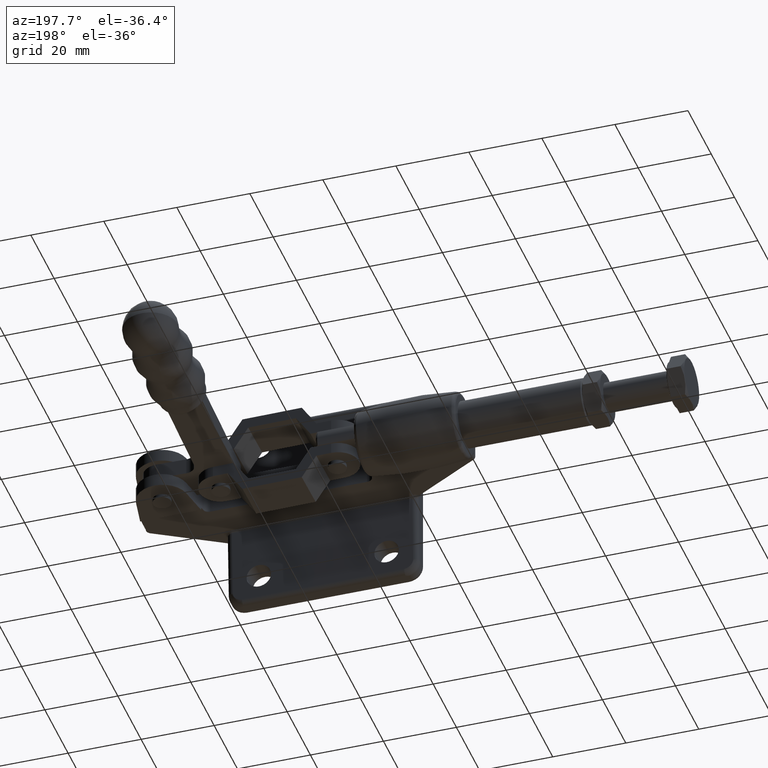
[diagram: clean part render]
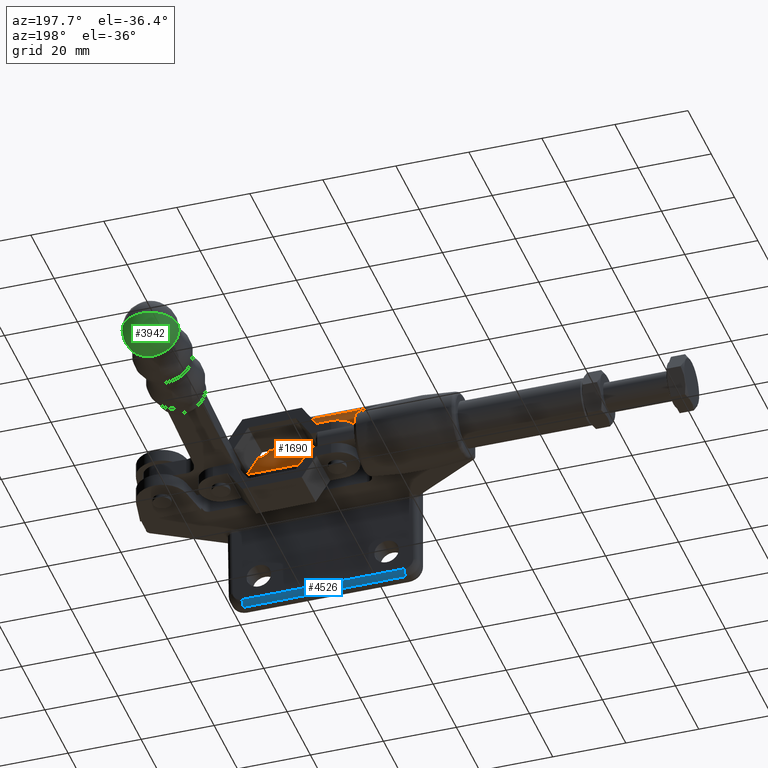
[diagram: same view with three faces highlighted in distinct colors, each labeled with its STEP entity id]
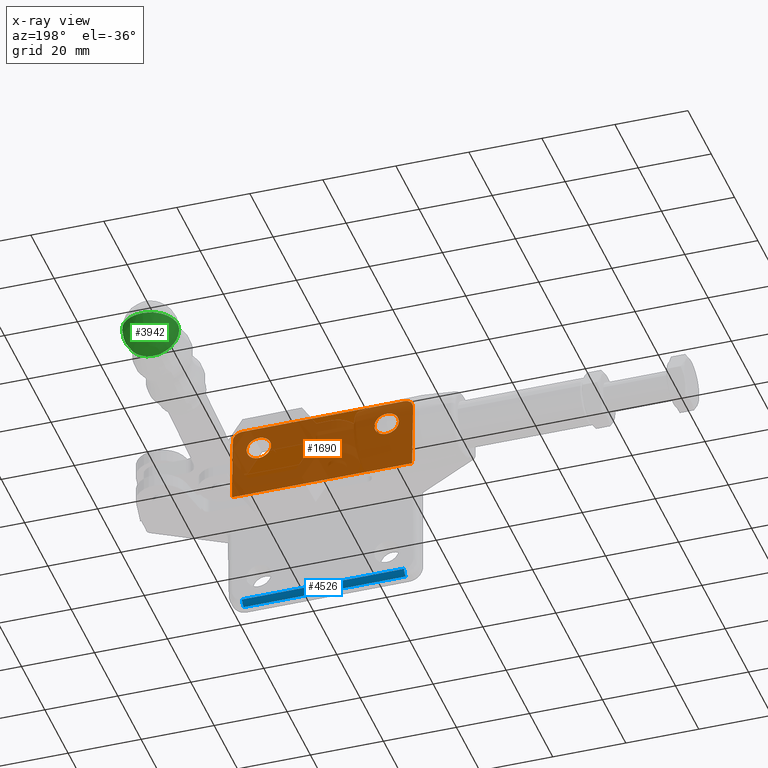
[diagram: x-ray of the same camera — body ghosted, the three highlighted faces saturated]
A machine part, auxiliary view with three faces highlighted in distinct colors.
The next image is the same camera in x-ray (body ghosted, the three faces saturated) — at least one of them is partly hidden behind the body in this view.
Their STEP definitions:

[orange] entity #1690 — the highlighted planar face has unit normal (0, 0.9991, 0.0422).
#135 = CARTESIAN_POINT ( 'NONE',  ( -68.90000000000020500, 5.915127798489936400, 5.953627758746062400 ) ) ;
#176 = LINE ( 'NONE', #6316, #3923 ) ;
#276 = ORIENTED_EDGE ( 'NONE', *, *, #8421, .F. ) ;
#426 = DIRECTION ( 'NONE',  ( 0.0000000000000000000, 0.9991110161104643800, 0.04215658295824644500 ) ) ;
#456 = ORIENTED_EDGE ( 'NONE', *, *, #6599, .F. ) ;
#479 = CARTESIAN_POINT ( 'NONE',  ( -68.81197862350347800, 5.060405032683214600, 26.21055730836550500 ) ) ;
#541 = CARTESIAN_POINT ( 'NONE',  ( -61.70000000000000300, 5.151567788310461400, 24.05000000000000400 ) ) ;
#577 = VERTEX_POINT ( 'NONE', #7050 ) ;
#749 = CARTESIAN_POINT ( 'NONE',  ( -19.99999999999998600, 5.151567788310462200, 24.05000000000000100 ) ) ;
#931 = CARTESIAN_POINT ( 'NONE',  ( -20.60297374564015600, 5.020207535012769300, 27.16323800315510800 ) ) ;
#1070 = B_SPLINE_CURVE_WITH_KNOTS ( 'NONE', 3,
 ( #5501, #3243, #3312, #8503, #4042, #9233, #4785 ),
 .UNSPECIFIED., .F., .F.,
 ( 4, 3, 4 ),
 ( 0.0000000000000000000, 0.0001400590099118806400, 0.0001478049766338954700 ),
 .UNSPECIFIED. ) ;
#1261 = ORIENTED_EDGE ( 'NONE', *, *, #9097, .T. ) ;
#1302 = CARTESIAN_POINT ( 'NONE',  ( -55.00000000000001400, 5.434268210251383700, 17.35000000000000100 ) ) ;
#1357 = CARTESIAN_POINT ( 'NONE',  ( -61.70000000000000300, 5.151567788310461400, 24.05000000000000400 ) ) ;
#1472 =( BOUNDED_CURVE ( )  B_SPLINE_CURVE ( 3, ( #9655, #749, #7453, #3005 ),
 .UNSPECIFIED., .F., .F. ) 
 B_SPLINE_CURVE_WITH_KNOTS ( ( 4, 4 ),
 ( 0.0000000000000000000, 3.141592653589793100 ),
 .UNSPECIFIED. ) 
 CURVE ( )  GEOMETRIC_REPRESENTATION_ITEM ( )  RATIONAL_B_SPLINE_CURVE ( ( 1.000000000000000000, 0.3333333333333333700, 0.3333333333333333700, 1.000000000000000000 ) ) 
 REPRESENTATION_ITEM ( '' )  );
#1488 = ORIENTED_EDGE ( 'NONE', *, *, #2234, .T. ) ;
#1690 = ADVANCED_FACE ( 'NONE', ( #3489, #1741, #7437 ), #9338, .T. ) ;
#1741 = FACE_BOUND ( 'NONE', #3968, .T. ) ;
#1753 = CARTESIAN_POINT ( 'NONE',  ( -19.50000000000084600, 5.119022652114331600, 24.82131972784834400 ) ) ;
#1782 = VECTOR ( 'NONE', #6584, 1000.000000000000000 ) ;
#1792 =( BOUNDED_CURVE ( )  B_SPLINE_CURVE ( 3, ( #3442, #479, #2748, #7947 ),
 .UNSPECIFIED., .F., .F. ) 
 B_SPLINE_CURVE_WITH_KNOTS ( ( 4, 4 ),
 ( 4.775663884239703400, 6.283185307179586200 ),
 .UNSPECIFIED. ) 
 CURVE ( )  GEOMETRIC_REPRESENTATION_ITEM ( )  RATIONAL_B_SPLINE_CURVE ( ( 1.000000000000000000, 0.8194135027329109100, 0.8194135027329109100, 1.000000000000000000 ) ) 
 REPRESENTATION_ITEM ( '' )  );
#1875 = CARTESIAN_POINT ( 'NONE',  ( -33.39999999999997700, 5.434268210251383700, 17.35000000000000500 ) ) ;
#1881 = DIRECTION ( 'NONE',  ( 1.000000000000000000, -0.0000000000000000000, -0.0000000000000000000 ) ) ;
#2094 = CARTESIAN_POINT ( 'NONE',  ( -68.40000000000000600, 5.434268210251383700, 17.35000000000000100 ) ) ;
#2234 = EDGE_CURVE ( 'NONE', #4988, #3099, #1070, .T. ) ;
#2275 = EDGE_CURVE ( 'NONE', #577, #4087, #9649, .T. ) ;
#2748 = CARTESIAN_POINT ( 'NONE',  ( -67.79702625436137000, 5.020207535012773700, 27.16323800315494800 ) ) ;
#2917 = EDGE_CURVE ( 'NONE', #4845, #4988, #5724, .T. ) ;
#3005 = CARTESIAN_POINT ( 'NONE',  ( -26.69999999999998500, 5.434268210251384600, 17.35000000000000500 ) ) ;
#3062 = ORIENTED_EDGE ( 'NONE', *, *, #5941, .T. ) ;
#3099 = VERTEX_POINT ( 'NONE', #135 ) ;
#3243 = CARTESIAN_POINT ( 'NONE',  ( -68.82313461346200300, 5.917897572117227300, 5.887984123779344400 ) ) ;
#3312 = CARTESIAN_POINT ( 'NONE',  ( -68.85865003874991400, 5.916620079809358200, 5.918260691475766500 ) ) ;
#3413 = CARTESIAN_POINT ( 'NONE',  ( 20.00000000000000000, 5.919169331895145300, 5.857843417042610100 ) ) ;
#3442 = CARTESIAN_POINT ( 'NONE',  ( -68.89999999999918100, 5.119022652114487000, 24.82131972784463500 ) ) ;
#3489 = FACE_BOUND ( 'NONE', #6695, .T. ) ;
#3582 = ORIENTED_EDGE ( 'NONE', *, *, #2275, .F. ) ;
#3591 = EDGE_LOOP ( 'NONE', ( #4688, #1488, #6839, #4880, #3062, #1261, #8593 ) ) ;
#3842 = AXIS2_PLACEMENT_3D ( 'NONE', #3413, #426, #5640 ) ;
#3923 = VECTOR ( 'NONE', #1881, 1000.000000000000000 ) ;
#3968 = EDGE_LOOP ( 'NONE', ( #8266, #456 ) ) ;
#4023 = VERTEX_POINT ( 'NONE', #5825 ) ;
#4042 = CARTESIAN_POINT ( 'NONE',  ( -68.89607753856414300, 5.915269390417723400, 5.950272030057523600 ) ) ;
#4087 = VERTEX_POINT ( 'NONE', #4433 ) ;
#4100 = CARTESIAN_POINT ( 'NONE',  ( -19.49999999999995700, 5.919169331895145300, 5.857843417042615500 ) ) ;
#4107 = CARTESIAN_POINT ( 'NONE',  ( -26.69999999999998500, 5.151567788310461400, 24.05000000000000100 ) ) ;
#4352 = CARTESIAN_POINT ( 'NONE',  ( -61.70000000000000300, 5.151567788310461400, 24.05000000000000400 ) ) ;
#4433 = CARTESIAN_POINT ( 'NONE',  ( -26.69999999999998500, 5.151567788310461400, 24.05000000000000100 ) ) ;
#4688 = ORIENTED_EDGE ( 'NONE', *, *, #2917, .T. ) ;
#4785 = CARTESIAN_POINT ( 'NONE',  ( -68.90000000000020500, 5.915127798489936400, 5.953627758746062400 ) ) ;
#4845 = VERTEX_POINT ( 'NONE', #6075 ) ;
#4880 = ORIENTED_EDGE ( 'NONE', *, *, #8758, .T. ) ;
#4895 = CARTESIAN_POINT ( 'NONE',  ( -21.99499702771817400, 5.020207667026188100, 27.16323487443739300 ) ) ;
#4988 = VERTEX_POINT ( 'NONE', #9253 ) ;
#5038 = EDGE_CURVE ( 'NONE', #3099, #6404, #9155, .T. ) ;
#5175 = EDGE_CURVE ( 'NONE', #8455, #5238, #7636, .T. ) ;
#5238 = VERTEX_POINT ( 'NONE', #4352 ) ;
#5501 = CARTESIAN_POINT ( 'NONE',  ( -68.78750408647897500, 5.919169331895147900, 5.857843417042609200 ) ) ;
#5558 = VECTOR ( 'NONE', #9291, 999.9999999999998900 ) ;
#5616 = DIRECTION ( 'NONE',  ( -1.864903780213822400E-016, -0.04215658295824645200, 0.9991110161104643800 ) ) ;
#5640 = DIRECTION ( 'NONE',  ( 0.0000000000000000000, 0.04215658295824644500, -0.9991110161104643800 ) ) ;
#5668 = VECTOR ( 'NONE', #5616, 999.9999999999998900 ) ;
#5724 = LINE ( 'NONE', #6558, #1782 ) ;
#5815 = CARTESIAN_POINT ( 'NONE',  ( -61.70000000000000300, 5.434268210251384600, 17.35000000000000100 ) ) ;
#5825 = CARTESIAN_POINT ( 'NONE',  ( -19.50000000000084600, 5.119022652114331600, 24.82131972784834400 ) ) ;
#5941 = EDGE_CURVE ( 'NONE', #6388, #8736, #176, .T. ) ;
#6075 = CARTESIAN_POINT ( 'NONE',  ( -19.49999999999995700, 5.919169331895147900, 5.857843417042609200 ) ) ;
#6205 = CARTESIAN_POINT ( 'NONE',  ( -19.58802137649849200, 5.060405032683130200, 26.21055730836750900 ) ) ;
#6313 = CARTESIAN_POINT ( 'NONE',  ( -26.69999999999998500, 5.434268210251384600, 17.35000000000000500 ) ) ;
#6316 = CARTESIAN_POINT ( 'NONE',  ( 20.00000000000000000, 5.020207667026188100, 27.16323487443738900 ) ) ;
#6388 = VERTEX_POINT ( 'NONE', #9101 ) ;
#6404 = VERTEX_POINT ( 'NONE', #7698 ) ;
#6490 = CARTESIAN_POINT ( 'NONE',  ( -61.70000000000000300, 5.434268210251384600, 17.35000000000000100 ) ) ;
#6537 =( BOUNDED_CURVE ( )  B_SPLINE_CURVE ( 3, ( #9146, #931, #6205, #1753 ),
 .UNSPECIFIED., .F., .F. ) 
 B_SPLINE_CURVE_WITH_KNOTS ( ( 4, 4 ),
 ( 0.0000000000000000000, 1.507521422938410800 ),
 .UNSPECIFIED. ) 
 CURVE ( )  GEOMETRIC_REPRESENTATION_ITEM ( )  RATIONAL_B_SPLINE_CURVE ( ( 1.000000000000000000, 0.8194135027332466500, 0.8194135027332466500, 1.000000000000000000 ) ) 
 REPRESENTATION_ITEM ( '' )  );
#6558 = CARTESIAN_POINT ( 'NONE',  ( 20.00000000000000000, 5.919169331895147900, 5.857843417042609200 ) ) ;
#6584 = DIRECTION ( 'NONE',  ( -1.000000000000000000, 0.0000000000000000000, 0.0000000000000000000 ) ) ;
#6599 = EDGE_CURVE ( 'NONE', #5238, #8455, #8482, .T. ) ;
#6695 = EDGE_LOOP ( 'NONE', ( #3582, #276 ) ) ;
#6839 = ORIENTED_EDGE ( 'NONE', *, *, #5038, .T. ) ;
#7050 = CARTESIAN_POINT ( 'NONE',  ( -26.69999999999998500, 5.434268210251384600, 17.35000000000000500 ) ) ;
#7053 = EDGE_CURVE ( 'NONE', #4023, #4845, #7538, .T. ) ;
#7437 = FACE_OUTER_BOUND ( 'NONE', #3591, .T. ) ;
#7453 = CARTESIAN_POINT ( 'NONE',  ( -19.99999999999998600, 5.434268210251383700, 17.35000000000000500 ) ) ;
#7538 = LINE ( 'NONE', #4100, #5558 ) ;
#7636 =( BOUNDED_CURVE ( )  B_SPLINE_CURVE ( 3, ( #5815, #2094, #8784, #1357 ),
 .UNSPECIFIED., .F., .F. ) 
 B_SPLINE_CURVE_WITH_KNOTS ( ( 4, 4 ),
 ( 3.141592653589793100, 6.283185307179586200 ),
 .UNSPECIFIED. ) 
 CURVE ( )  GEOMETRIC_REPRESENTATION_ITEM ( )  RATIONAL_B_SPLINE_CURVE ( ( 1.000000000000000000, 0.3333333333333333700, 0.3333333333333333700, 1.000000000000000000 ) ) 
 REPRESENTATION_ITEM ( '' )  );
#7698 = CARTESIAN_POINT ( 'NONE',  ( -68.89999999999918100, 5.119022652114487000, 24.82131972784463500 ) ) ;
#7947 = CARTESIAN_POINT ( 'NONE',  ( -66.40500297228176400, 5.020207667026188100, 27.16323487443739300 ) ) ;
#8266 = ORIENTED_EDGE ( 'NONE', *, *, #5175, .F. ) ;
#8421 = EDGE_CURVE ( 'NONE', #4087, #577, #1472, .T. ) ;
#8455 = VERTEX_POINT ( 'NONE', #8969 ) ;
#8482 =( BOUNDED_CURVE ( )  B_SPLINE_CURVE ( 3, ( #541, #9443, #1302, #6490 ),
 .UNSPECIFIED., .F., .F. ) 
 B_SPLINE_CURVE_WITH_KNOTS ( ( 4, 4 ),
 ( 0.0000000000000000000, 3.141592653589793100 ),
 .UNSPECIFIED. ) 
 CURVE ( )  GEOMETRIC_REPRESENTATION_ITEM ( )  RATIONAL_B_SPLINE_CURVE ( ( 1.000000000000000000, 0.3333333333333333700, 0.3333333333333333700, 1.000000000000000000 ) ) 
 REPRESENTATION_ITEM ( '' )  );
#8503 = CARTESIAN_POINT ( 'NONE',  ( -68.89411608791036200, 5.915340175551739900, 5.948594422381325400 ) ) ;
#8554 = CARTESIAN_POINT ( 'NONE',  ( -33.39999999999997700, 5.151567788310462200, 24.05000000000000100 ) ) ;
#8578 = CARTESIAN_POINT ( 'NONE',  ( -68.90000000000020500, 5.919169331895146200, 5.857843417042594100 ) ) ;
#8593 = ORIENTED_EDGE ( 'NONE', *, *, #7053, .T. ) ;
#8736 = VERTEX_POINT ( 'NONE', #4895 ) ;
#8758 = EDGE_CURVE ( 'NONE', #6404, #6388, #1792, .T. ) ;
#8784 = CARTESIAN_POINT ( 'NONE',  ( -68.40000000000000600, 5.151567788310462200, 24.05000000000001100 ) ) ;
#8969 = CARTESIAN_POINT ( 'NONE',  ( -61.70000000000000300, 5.434268210251384600, 17.35000000000000100 ) ) ;
#9097 = EDGE_CURVE ( 'NONE', #8736, #4023, #6537, .T. ) ;
#9101 = CARTESIAN_POINT ( 'NONE',  ( -66.40500297228176400, 5.020207667026188100, 27.16323487443739300 ) ) ;
#9146 = CARTESIAN_POINT ( 'NONE',  ( -21.99499702771817400, 5.020207667026188100, 27.16323487443739300 ) ) ;
#9155 = LINE ( 'NONE', #8578, #5668 ) ;
#9233 = CARTESIAN_POINT ( 'NONE',  ( -68.89803869597030000, 5.915198590843870900, 5.951949979957809900 ) ) ;
#9253 = CARTESIAN_POINT ( 'NONE',  ( -68.78750408647897500, 5.919169331895147900, 5.857843417042609200 ) ) ;
#9291 = DIRECTION ( 'NONE',  ( -7.141752233659166100E-015, 0.04215658295824645200, -0.9991110161104643800 ) ) ;
#9338 = PLANE ( 'NONE',  #3842 ) ;
#9443 = CARTESIAN_POINT ( 'NONE',  ( -55.00000000000001400, 5.151567788310462200, 24.05000000000001100 ) ) ;
#9649 =( BOUNDED_CURVE ( )  B_SPLINE_CURVE ( 3, ( #6313, #1875, #8554, #4107 ),
 .UNSPECIFIED., .F., .T. ) 
 B_SPLINE_CURVE_WITH_KNOTS ( ( 4, 4 ),
 ( 3.141592653589793100, 6.283185307179586200 ),
 .UNSPECIFIED. ) 
 CURVE ( )  GEOMETRIC_REPRESENTATION_ITEM ( )  RATIONAL_B_SPLINE_CURVE ( ( 1.000000000000000000, 0.3333333333333333700, 0.3333333333333333700, 1.000000000000000000 ) ) 
 REPRESENTATION_ITEM ( '' )  );
#9655 = CARTESIAN_POINT ( 'NONE',  ( -26.69999999999998500, 5.151567788310461400, 24.05000000000000100 ) ) ;

[blue] entity #4526 — the highlighted cylindrical surface (edge-blend (fillet) strip) has radius 1.5 mm, axis along (-1, 0, 0).
#1294 = EDGE_LOOP ( 'NONE', ( #4825, #3183, #5289, #7554 ) ) ;
#1530 = CARTESIAN_POINT ( 'NONE',  ( -66.39999999999999100, 5.020207667026109100, -27.16323487443740700 ) ) ;
#1553 = CARTESIAN_POINT ( 'NONE',  ( -21.99999999999998900, 5.020207667026103800, -27.16323487443753100 ) ) ;
#1627 = VECTOR ( 'NONE', #9657, 1000.000000000000000 ) ;
#2217 = VERTEX_POINT ( 'NONE', #2531 ) ;
#2435 = CYLINDRICAL_SURFACE ( 'NONE', #3670, 1.500000000000001300 ) ;
#2531 = CARTESIAN_POINT ( 'NONE',  ( -21.99999999999998900, 3.521541142860407100, -28.60000000000016800 ) ) ;
#2557 = DIRECTION ( 'NONE',  ( -1.000000000000000000, 0.0000000000000000000, 0.0000000000000000000 ) ) ;
#2677 = FACE_OUTER_BOUND ( 'NONE', #1294, .T. ) ;
#2768 = VECTOR ( 'NONE', #2557, 1000.000000000000000 ) ;
#2884 = DIRECTION ( 'NONE',  ( -1.000000000000000000, 3.903737779975978600E-016, 9.251858538542940700E-015 ) ) ;
#2894 = EDGE_CURVE ( 'NONE', #4152, #3253, #7722, .T. ) ;
#2976 = CARTESIAN_POINT ( 'NONE',  ( 20.00000000000000000, 3.521541142860411500, -28.60000000000003700 ) ) ;
#2993 = LINE ( 'NONE', #8493, #2768 ) ;
#3034 = VERTEX_POINT ( 'NONE', #1553 ) ;
#3183 = ORIENTED_EDGE ( 'NONE', *, *, #4115, .F. ) ;
#3253 = VERTEX_POINT ( 'NONE', #7741 ) ;
#3552 = CARTESIAN_POINT ( 'NONE',  ( -21.99999999999998900, 3.521541142860408000, -27.10000000000015800 ) ) ;
#3670 = AXIS2_PLACEMENT_3D ( 'NONE', #4219, #8639, #8659 ) ;
#4115 = EDGE_CURVE ( 'NONE', #3253, #2217, #9300, .T. ) ;
#4152 = VERTEX_POINT ( 'NONE', #1530 ) ;
#4219 = CARTESIAN_POINT ( 'NONE',  ( 20.00000000000000000, 3.521541142860413300, -27.10000000000003300 ) ) ;
#4301 = DIRECTION ( 'NONE',  ( 0.0000000000000000000, 0.0000000000000000000, 1.000000000000000000 ) ) ;
#4526 = ADVANCED_FACE ( 'NONE', ( #2677 ), #2435, .T. ) ;
#4825 = ORIENTED_EDGE ( 'NONE', *, *, #6726, .T. ) ;
#5252 = AXIS2_PLACEMENT_3D ( 'NONE', #3552, #8762, #4301 ) ;
#5289 = ORIENTED_EDGE ( 'NONE', *, *, #2894, .F. ) ;
#6429 = EDGE_CURVE ( 'NONE', #3034, #4152, #2993, .T. ) ;
#6607 = CIRCLE ( 'NONE', #5252, 1.500000000000001300 ) ;
#6726 = EDGE_CURVE ( 'NONE', #3034, #2217, #6607, .T. ) ;
#6894 = AXIS2_PLACEMENT_3D ( 'NONE', #7312, #2884, #8075 ) ;
#7312 = CARTESIAN_POINT ( 'NONE',  ( -66.39999999999999100, 3.521541142860413300, -27.10000000000003300 ) ) ;
#7554 = ORIENTED_EDGE ( 'NONE', *, *, #6429, .F. ) ;
#7722 = CIRCLE ( 'NONE', #6894, 1.500000000000001300 ) ;
#7741 = CARTESIAN_POINT ( 'NONE',  ( -66.40000000000000600, 3.521541142860407100, -28.60000000000001600 ) ) ;
#8075 = DIRECTION ( 'NONE',  ( 9.251858538542962800E-015, 0.0000000000000000000, 1.000000000000000000 ) ) ;
#8493 = CARTESIAN_POINT ( 'NONE',  ( 20.00000000000000000, 5.020207667026109100, -27.16323487443740700 ) ) ;
#8639 = DIRECTION ( 'NONE',  ( -1.000000000000000000, 0.0000000000000000000, 0.0000000000000000000 ) ) ;
#8659 = DIRECTION ( 'NONE',  ( 0.0000000000000000000, 0.0000000000000000000, 1.000000000000000000 ) ) ;
#8762 = DIRECTION ( 'NONE',  ( -1.000000000000000000, 0.0000000000000000000, 0.0000000000000000000 ) ) ;
#9300 = LINE ( 'NONE', #2976, #1627 ) ;
#9657 = DIRECTION ( 'NONE',  ( 1.000000000000000000, -0.0000000000000000000, -0.0000000000000000000 ) ) ;

[green] entity #3942 — the highlighted spherical surface has radius 7.4635 mm.
#238 = VERTEX_POINT ( 'NONE', #6807 ) ;
#854 = AXIS2_PLACEMENT_3D ( 'NONE', #2852, #8031, #3571 ) ;
#1053 = DIRECTION ( 'NONE',  ( -0.02493062976513190900, 0.9996891835463230800, 2.613657436386049100E-033 ) ) ;
#1081 = DIRECTION ( 'NONE',  ( 1.071046855140826600E-032, -2.347368311013704000E-033, 1.000000000000000000 ) ) ;
#1309 = DIRECTION ( 'NONE',  ( -6.516012587942482700E-035, 2.612845068650545000E-033, -1.000000000000000000 ) ) ;
#1474 = AXIS2_PLACEMENT_3D ( 'NONE', #5502, #1053, #6257 ) ;
#2309 = AXIS2_PLACEMENT_3D ( 'NONE', #7228, #1309, #6500 ) ;
#2473 = VERTEX_POINT ( 'NONE', #4465 ) ;
#2499 = AXIS2_PLACEMENT_3D ( 'NONE', #5531, #1081, #6287 ) ;
#2579 = SPHERICAL_SURFACE ( 'NONE', #2309, 7.463467123109939600 ) ;
#2694 = VERTEX_POINT ( 'NONE', #3207 ) ;
#2711 = DIRECTION ( 'NONE',  ( 1.224266158772236000E-016, 3.053121594259655900E-018, -1.000000000000000000 ) ) ;
#2852 = CARTESIAN_POINT ( 'NONE',  ( -24.17419659072641400, 88.32397167839035000, -0.05000000000013760800 ) ) ;
#3045 = ORIENTED_EDGE ( 'NONE', *, *, #3822, .F. ) ;
#3207 = CARTESIAN_POINT ( 'NONE',  ( -24.41281062652461700, 97.89211628111732500, -0.05000000000013760800 ) ) ;
#3288 = CIRCLE ( 'NONE', #1474, 7.159688757698106100 ) ;
#3429 = EDGE_CURVE ( 'NONE', #238, #2473, #5715, .T. ) ;
#3519 = AXIS2_PLACEMENT_3D ( 'NONE', #7133, #2711, #7902 ) ;
#3571 = DIRECTION ( 'NONE',  ( 0.0000000000000000000, 0.0000000000000000000, 1.000000000000000000 ) ) ;
#3773 = EDGE_CURVE ( 'NONE', #7909, #238, #3288, .T. ) ;
#3822 = EDGE_CURVE ( 'NONE', #7909, #2694, #5011, .T. ) ;
#3942 = ADVANCED_FACE ( 'NONE', ( #7328 ), #2579, .T. ) ;
#4465 = CARTESIAN_POINT ( 'NONE',  ( -31.33165999935538800, 88.14547612873859400, -0.05000000000013848200 ) ) ;
#5011 = CIRCLE ( 'NONE', #2499, 7.463467123109940500 ) ;
#5382 = ORIENTED_EDGE ( 'NONE', *, *, #3429, .T. ) ;
#5502 = CARTESIAN_POINT ( 'NONE',  ( -24.17419659072641400, 88.32397167839035000, -0.05000000000013760800 ) ) ;
#5531 = CARTESIAN_POINT ( 'NONE',  ( -24.22674169091413200, 90.43096892639071900, -0.05000000000013760800 ) ) ;
#5715 = CIRCLE ( 'NONE', #854, 7.159688757698106100 ) ;
#6153 = ORIENTED_EDGE ( 'NONE', *, *, #3773, .T. ) ;
#6257 = DIRECTION ( 'NONE',  ( 0.0000000000000000000, 0.0000000000000000000, 1.000000000000000000 ) ) ;
#6287 = DIRECTION ( 'NONE',  ( 1.000000000000000000, 0.0000000000000000000, 0.0000000000000000000 ) ) ;
#6500 = DIRECTION ( 'NONE',  ( 0.9996891835463229700, 0.02493062976513207500, 0.0000000000000000000 ) ) ;
#6807 = CARTESIAN_POINT ( 'NONE',  ( -24.17419659072641700, 88.32397167839035000, -7.209688757698241800 ) ) ;
#7058 = CIRCLE ( 'NONE', #3519, 7.463467123109937000 ) ;
#7133 = CARTESIAN_POINT ( 'NONE',  ( -24.22674169091413200, 90.43096892639071900, -0.05000000000013760800 ) ) ;
#7228 = CARTESIAN_POINT ( 'NONE',  ( -24.22674169091413200, 90.43096892639071900, -0.05000000000013760800 ) ) ;
#7328 = FACE_OUTER_BOUND ( 'NONE', #7807, .T. ) ;
#7700 = EDGE_CURVE ( 'NONE', #2473, #2694, #7058, .T. ) ;
#7807 = EDGE_LOOP ( 'NONE', ( #6153, #5382, #8675, #3045 ) ) ;
#7902 = DIRECTION ( 'NONE',  ( -1.000000000000000000, 0.0000000000000000000, -1.225697880013518500E-016 ) ) ;
#7909 = VERTEX_POINT ( 'NONE', #8188 ) ;
#8031 = DIRECTION ( 'NONE',  ( -0.02493062976513190900, 0.9996891835463230800, 2.613657436386049100E-033 ) ) ;
#8188 = CARTESIAN_POINT ( 'NONE',  ( -17.01673318209740800, 88.50246722804209300, -0.05000000000013760800 ) ) ;
#8675 = ORIENTED_EDGE ( 'NONE', *, *, #7700, .T. ) ;